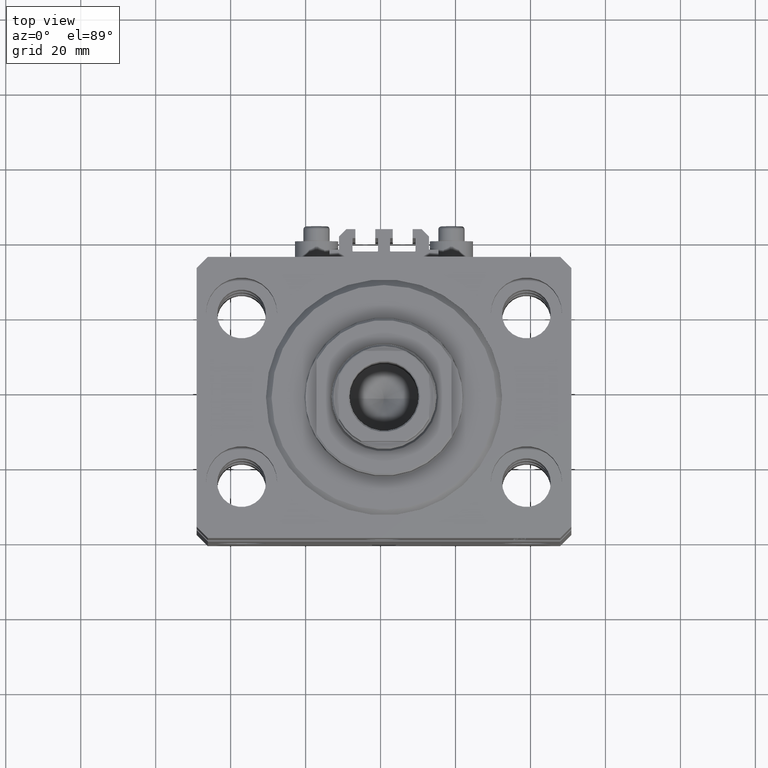
[diagram: clean part render]
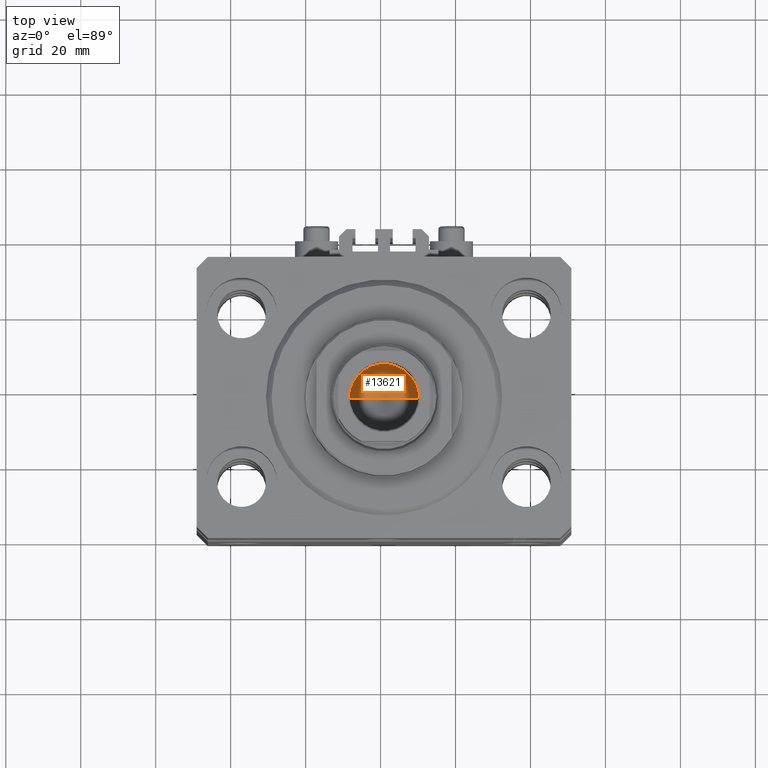
[diagram: same view with one face highlighted and labeled with its STEP entity id]
A machine part, top view. The second image highlights one B-rep face of the part: STEP entity #13621.
In plain terms, the highlighted conical surface has half-angle 59 deg.
Its self-contained STEP definition (entity closure, byte-faithful):
#5231 = DIRECTION ( 'NONE',  ( -0.000000000000000000, -0.000000000000000000, 1.000000000000000000 ) ) ;
#8582 = EDGE_CURVE ( 'NONE', #38607, #20410, #36800, .T. ) ;
#8758 = DIRECTION ( 'NONE',  ( -0.8571673007021117785, 1.049727191138617956E-16, 0.5150380749100550437 ) ) ;
#13621 = ADVANCED_FACE ( 'NONE', ( #34899 ), #33345, .F. ) ;
#14027 = VECTOR ( 'NONE', #39773, 1000.000000000000000 ) ;
#16384 = CIRCLE ( 'NONE', #21046, 9.249999999999994671 ) ;
#16459 = CARTESIAN_POINT ( 'NONE',  ( 0.000000000000000000, 0.000000000000000000, 98.09999999999999432 ) ) ;
#16638 = DIRECTION ( 'NONE',  ( 1.000000000000000000, 0.000000000000000000, 0.000000000000000000 ) ) ;
#17638 = VECTOR ( 'NONE', #8758, 1000.000000000000000 ) ;
#17715 = EDGE_CURVE ( 'NONE', #18798, #20410, #16384, .T. ) ;
#18028 = EDGE_CURVE ( 'NONE', #38607, #18798, #21020, .T. ) ;
#18290 = CARTESIAN_POINT ( 'NONE',  ( -9.249999999999994671, 1.132798289211300909E-15, 98.09999999999999432 ) ) ;
#18798 = VERTEX_POINT ( 'NONE', #36590 ) ;
#20410 = VERTEX_POINT ( 'NONE', #30205 ) ;
#20530 = CARTESIAN_POINT ( 'NONE',  ( 0.000000000000000000, 0.000000000000000000, 98.09999999999999432 ) ) ;
#21020 = LINE ( 'NONE', #36109, #14027 ) ;
#21046 = AXIS2_PLACEMENT_3D ( 'NONE', #16459, #5231, #31557 ) ;
#27019 = ORIENTED_EDGE ( 'NONE', *, *, #18028, .T. ) ;
#30205 = CARTESIAN_POINT ( 'NONE',  ( -9.249999999999994671, 1.132798289211300909E-15, 98.09999999999999432 ) ) ;
#31557 = DIRECTION ( 'NONE',  ( 1.000000000000000000, 0.000000000000000000, 0.000000000000000000 ) ) ;
#32983 = EDGE_LOOP ( 'NONE', ( #47564, #27019, #38765 ) ) ;
#33345 = CONICAL_SURFACE ( 'NONE', #47339, 9.249999999999994671, 1.029744258676653423 ) ;
#34899 = FACE_OUTER_BOUND ( 'NONE', #32983, .T. ) ;
#36109 = CARTESIAN_POINT ( 'NONE',  ( 9.249999999999994671, 0.000000000000000000, 98.09999999999999432 ) ) ;
#36590 = CARTESIAN_POINT ( 'NONE',  ( 9.249999999999994671, 0.000000000000000000, 98.09999999999999432 ) ) ;
#36800 = LINE ( 'NONE', #18290, #17638 ) ;
#38607 = VERTEX_POINT ( 'NONE', #41488 ) ;
#38765 = ORIENTED_EDGE ( 'NONE', *, *, #17715, .T. ) ;
#39773 = DIRECTION ( 'NONE',  ( 0.8571673007021117785, 0.000000000000000000, 0.5150380749100550437 ) ) ;
#41488 = CARTESIAN_POINT ( 'NONE',  ( -1.046994375366439223E-14, 0.000000000000000000, 92.54203927399505858 ) ) ;
#42938 = DIRECTION ( 'NONE',  ( -0.000000000000000000, -0.000000000000000000, 1.000000000000000000 ) ) ;
#47339 = AXIS2_PLACEMENT_3D ( 'NONE', #20530, #42938, #16638 ) ;
#47564 = ORIENTED_EDGE ( 'NONE', *, *, #8582, .F. ) ;